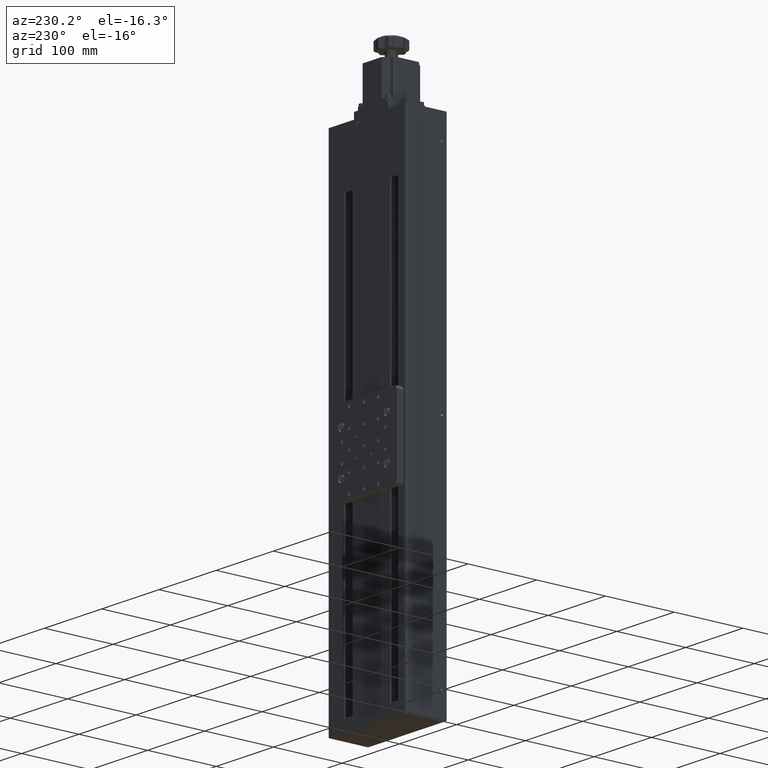
[diagram: clean part render]
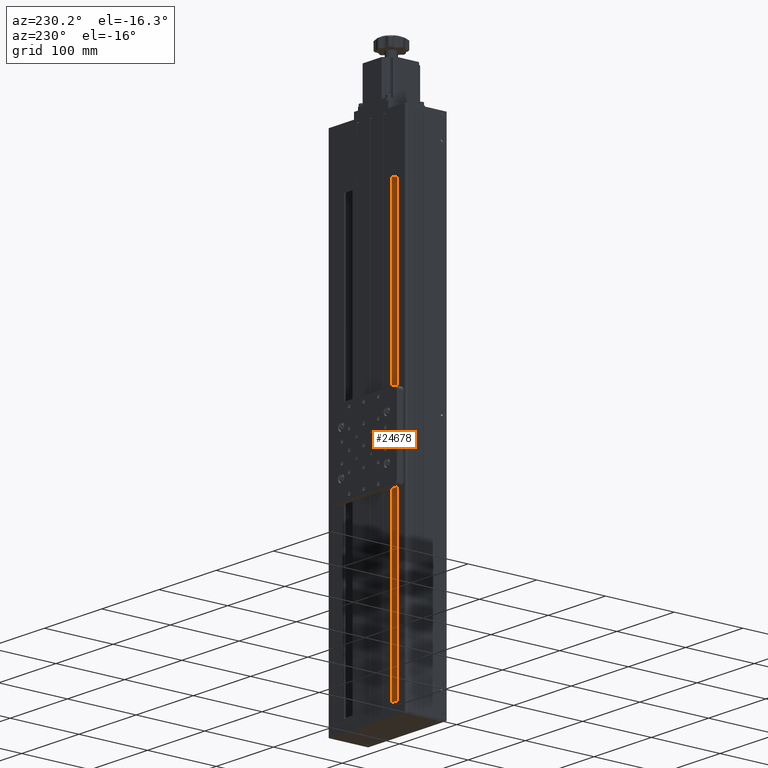
[diagram: same view with one face highlighted and labeled with its STEP entity id]
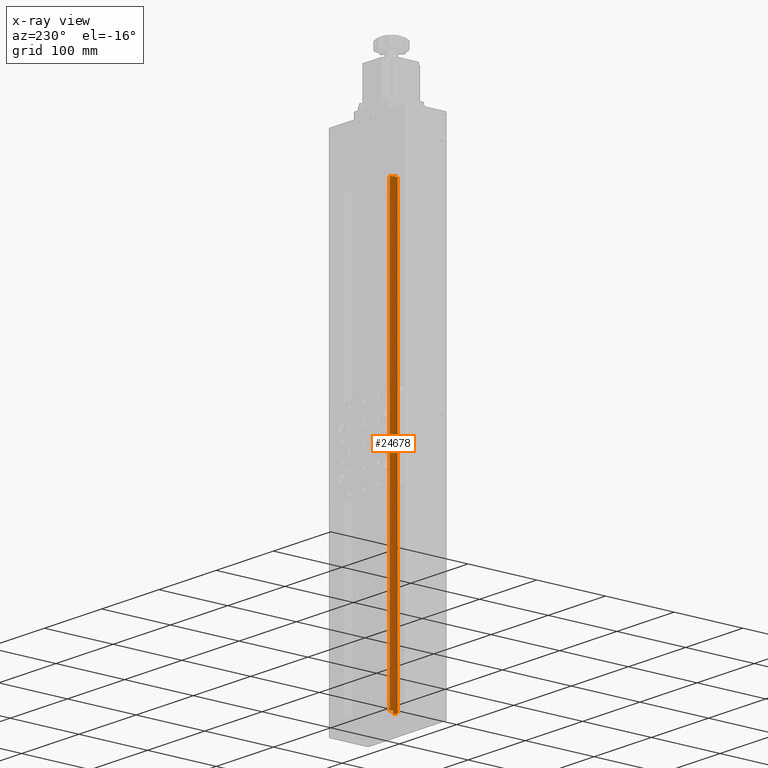
[diagram: x-ray of the same camera — body ghosted, the highlighted face saturated]
A machine part, auxiliary view. The second image highlights one B-rep face of the part: STEP entity #24678.
The next image is the same camera in x-ray: the body ghosted, the highlighted face saturated — about 0% of this face is hidden behind the body in this view.
In plain terms, the highlighted cylindrical surface (edge-blend (fillet) strip) has radius 7 mm, axis along (0, -0, -1).
Its self-contained STEP definition (entity closure, byte-faithful):
#1996 = DIRECTION ( 'NONE',  ( 4.737113841796575600E-029, -2.192866807852610800E-016, -1.000000000000000000 ) ) ;
#2339 = VERTEX_POINT ( 'NONE', #25322 ) ;
#3038 = CARTESIAN_POINT ( 'NONE',  ( -10.61080835603994100, 20.58234937935195300, -350.0000000000000000 ) ) ;
#6071 = CARTESIAN_POINT ( 'NONE',  ( -10.61080835603994100, 20.58234937935209200, 286.0000000000000600 ) ) ;
#7962 = DIRECTION ( 'NONE',  ( 4.737113841796575600E-029, -2.192866807852610800E-016, -1.000000000000000000 ) ) ;
#8026 = FACE_OUTER_BOUND ( 'NONE', #9640, .T. ) ;
#8430 = CIRCLE ( 'NONE', #11937, 6.999999999999999100 ) ;
#9099 = AXIS2_PLACEMENT_3D ( 'NONE', #3038, #39450, #16411 ) ;
#9415 = DIRECTION ( 'NONE',  ( 0.5650183862933264600, -0.8250783133439427700, 0.0000000000000000000 ) ) ;
#9640 = EDGE_LOOP ( 'NONE', ( #42184, #38999, #35393, #10221 ) ) ;
#10221 = ORIENTED_EDGE ( 'NONE', *, *, #30284, .F. ) ;
#10511 = DIRECTION ( 'NONE',  ( 4.737113841796575600E-029, -2.192866807852610800E-016, -1.000000000000000000 ) ) ;
#11625 = CYLINDRICAL_SURFACE ( 'NONE', #9099, 6.999999999999999100 ) ;
#11937 = AXIS2_PLACEMENT_3D ( 'NONE', #21959, #1996, #25306 ) ;
#13195 = LINE ( 'NONE', #20432, #29898 ) ;
#13676 = VERTEX_POINT ( 'NONE', #25023 ) ;
#13725 = EDGE_CURVE ( 'NONE', #2339, #39432, #8430, .T. ) ;
#16411 = DIRECTION ( 'NONE',  ( 0.5650183862933264600, -0.8250783133439427700, 0.0000000000000000000 ) ) ;
#17648 = CIRCLE ( 'NONE', #38871, 6.999999999999999100 ) ;
#20432 = CARTESIAN_POINT ( 'NONE',  ( -6.655679651986656800, 14.80680118594435300, -350.0000000000000000 ) ) ;
#21959 = CARTESIAN_POINT ( 'NONE',  ( -10.61080835603994800, 20.58234937935196400, -336.9999999999999400 ) ) ;
#22156 = CARTESIAN_POINT ( 'NONE',  ( -14.56593706009322600, 26.35789757275955100, -350.0000000000000000 ) ) ;
#24678 = ADVANCED_FACE ( 'NONE', ( #8026 ), #11625, .T. ) ;
#25023 = CARTESIAN_POINT ( 'NONE',  ( -14.56593706009325800, 26.35789757275966800, 286.0000000000000600 ) ) ;
#25032 = VECTOR ( 'NONE', #7962, 1000.000000000000000 ) ;
#25306 = DIRECTION ( 'NONE',  ( 0.5650183862933264600, -0.8250783133439427700, 0.0000000000000000000 ) ) ;
#25322 = CARTESIAN_POINT ( 'NONE',  ( -6.655679651986663900, 14.80680118594436400, -336.9999999999999400 ) ) ;
#28428 = EDGE_CURVE ( 'NONE', #13676, #39432, #33927, .T. ) ;
#29388 = DIRECTION ( 'NONE',  ( 4.737113841796575600E-029, -2.192866807852610800E-016, -1.000000000000000000 ) ) ;
#29898 = VECTOR ( 'NONE', #10511, 1000.000000000000000 ) ;
#30284 = EDGE_CURVE ( 'NONE', #34873, #2339, #13195, .T. ) ;
#33737 = CARTESIAN_POINT ( 'NONE',  ( -6.655679651986656800, 14.80680118594449200, 286.0000000000000600 ) ) ;
#33927 = LINE ( 'NONE', #22156, #25032 ) ;
#34382 = CARTESIAN_POINT ( 'NONE',  ( -14.56593706009320000, 26.35789757275958300, -336.9999999999999400 ) ) ;
#34873 = VERTEX_POINT ( 'NONE', #33737 ) ;
#35393 = ORIENTED_EDGE ( 'NONE', *, *, #13725, .F. ) ;
#38871 = AXIS2_PLACEMENT_3D ( 'NONE', #6071, #29388, #9415 ) ;
#38999 = ORIENTED_EDGE ( 'NONE', *, *, #28428, .T. ) ;
#39432 = VERTEX_POINT ( 'NONE', #34382 ) ;
#39450 = DIRECTION ( 'NONE',  ( 4.737113841796575600E-029, -2.192866807852610800E-016, -1.000000000000000000 ) ) ;
#42184 = ORIENTED_EDGE ( 'NONE', *, *, #42720, .T. ) ;
#42720 = EDGE_CURVE ( 'NONE', #34873, #13676, #17648, .T. ) ;